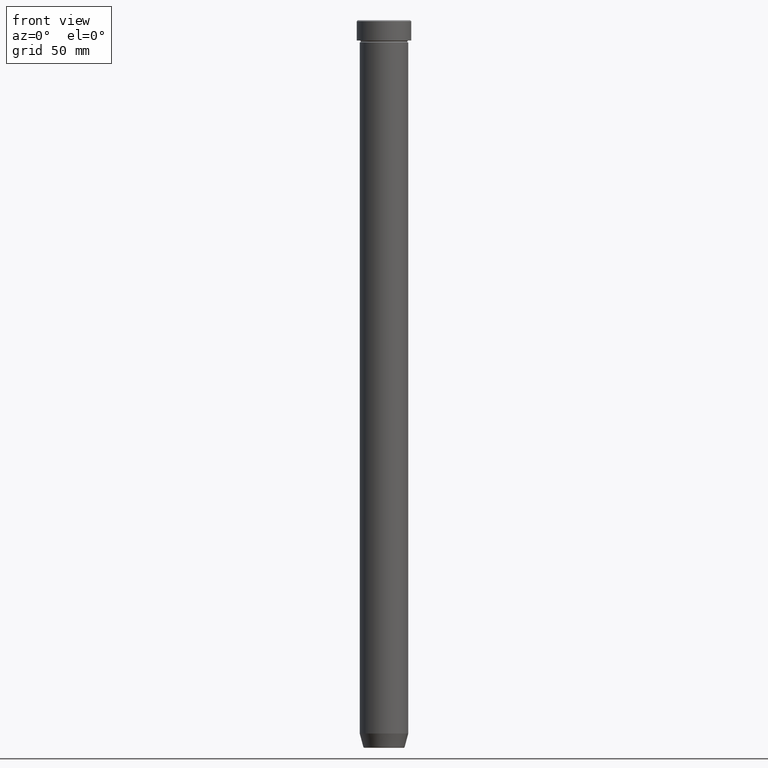
[diagram: clean part render]
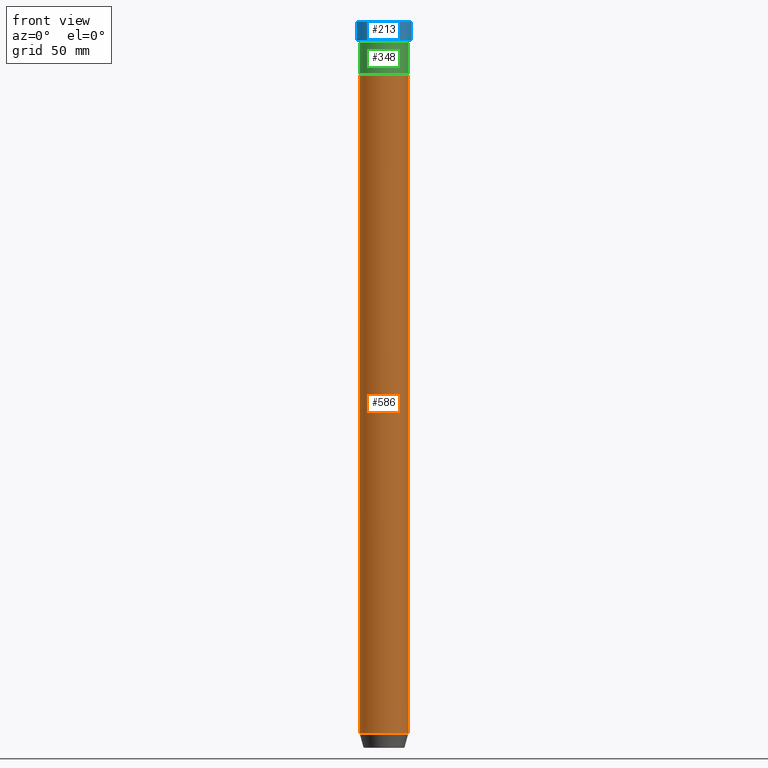
[diagram: same view with three faces highlighted in distinct colors, each labeled with its STEP entity id]
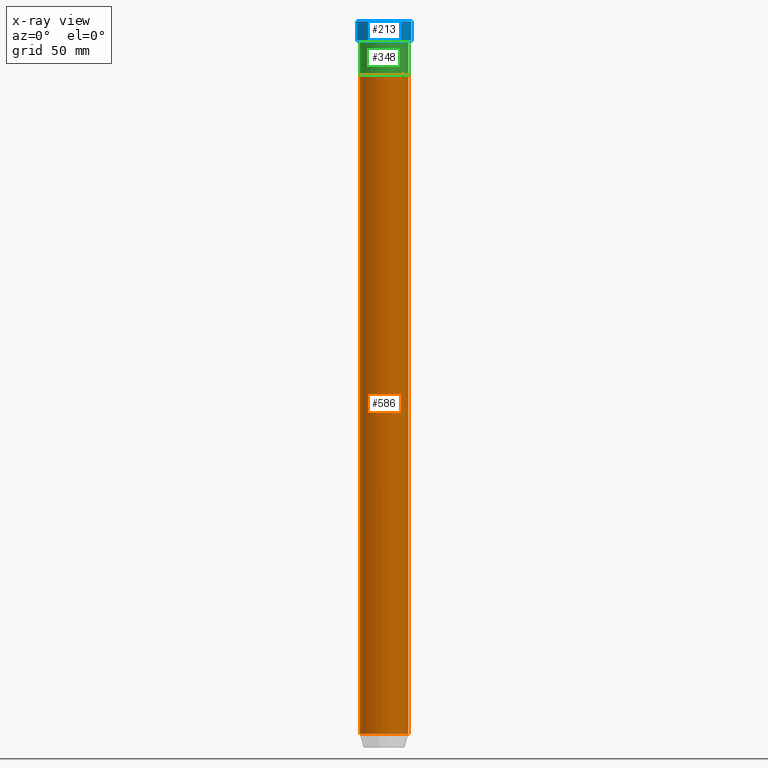
[diagram: x-ray of the same camera — body ghosted, the three highlighted faces saturated]
A machine part, front view with three faces highlighted in distinct colors.
The next image is the same camera in x-ray (body ghosted, the three faces saturated) — at least one of them is partly hidden behind the body in this view.
Their STEP definitions:

[orange] entity #586 — the highlighted cylindrical surface (edge-blend (fillet) strip) has radius 12 mm, axis along (-0, -0, 1).
#5 = DIRECTION ( 'NONE',  ( -0.000000000000000000, -0.000000000000000000, 1.000000000000000000 ) ) ;
#15 = DIRECTION ( 'NONE',  ( -0.000000000000000000, -0.000000000000000000, 1.000000000000000000 ) ) ;
#49 = VERTEX_POINT ( 'NONE', #89 ) ;
#58 = LINE ( 'NONE', #565, #477 ) ;
#67 = DIRECTION ( 'NONE',  ( 1.000000000000000000, 0.000000000000000000, 0.000000000000000000 ) ) ;
#89 = CARTESIAN_POINT ( 'NONE',  ( -12.00000000000000000, 1.469576158976823947E-15, -353.0000000000000568 ) ) ;
#96 = EDGE_CURVE ( 'NONE', #49, #287, #172, .T. ) ;
#97 = CARTESIAN_POINT ( 'NONE',  ( 0.000000000000000000, 0.000000000000000000, -353.0000000000000568 ) ) ;
#110 = VECTOR ( 'NONE', #141, 1000.000000000000000 ) ;
#116 = CARTESIAN_POINT ( 'NONE',  ( 0.000000000000000000, 0.000000000000000000, 0.000000000000000000 ) ) ;
#131 = ORIENTED_EDGE ( 'NONE', *, *, #96, .T. ) ;
#141 = DIRECTION ( 'NONE',  ( -0.000000000000000000, -0.000000000000000000, 1.000000000000000000 ) ) ;
#172 = CIRCLE ( 'NONE', #338, 12.00000000000000000 ) ;
#200 = AXIS2_PLACEMENT_3D ( 'NONE', #483, #393, #201 ) ;
#201 = DIRECTION ( 'NONE',  ( 1.000000000000000000, 0.000000000000000000, 0.000000000000000000 ) ) ;
#223 = CIRCLE ( 'NONE', #200, 12.00000000000000000 ) ;
#227 = VERTEX_POINT ( 'NONE', #504 ) ;
#261 = ORIENTED_EDGE ( 'NONE', *, *, #553, .T. ) ;
#268 = CYLINDRICAL_SURFACE ( 'NONE', #449, 12.00000000000000000 ) ;
#272 = EDGE_LOOP ( 'NONE', ( #317, #131, #261, #485 ) ) ;
#278 = FACE_OUTER_BOUND ( 'NONE', #272, .T. ) ;
#287 = VERTEX_POINT ( 'NONE', #328 ) ;
#317 = ORIENTED_EDGE ( 'NONE', *, *, #459, .F. ) ;
#328 = CARTESIAN_POINT ( 'NONE',  ( 12.00000000000000000, 0.000000000000000000, -353.0000000000000568 ) ) ;
#338 = AXIS2_PLACEMENT_3D ( 'NONE', #97, #5, #67 ) ;
#349 = CARTESIAN_POINT ( 'NONE',  ( 12.00000000000000000, 0.000000000000000000, -27.00000000000000000 ) ) ;
#393 = DIRECTION ( 'NONE',  ( -0.000000000000000000, -0.000000000000000000, 1.000000000000000000 ) ) ;
#449 = AXIS2_PLACEMENT_3D ( 'NONE', #116, #460, #575 ) ;
#459 = EDGE_CURVE ( 'NONE', #49, #227, #58, .T. ) ;
#460 = DIRECTION ( 'NONE',  ( -0.000000000000000000, -0.000000000000000000, 1.000000000000000000 ) ) ;
#474 = EDGE_CURVE ( 'NONE', #227, #489, #223, .T. ) ;
#477 = VECTOR ( 'NONE', #15, 1000.000000000000000 ) ;
#483 = CARTESIAN_POINT ( 'NONE',  ( 0.000000000000000000, 0.000000000000000000, -27.00000000000000000 ) ) ;
#485 = ORIENTED_EDGE ( 'NONE', *, *, #474, .F. ) ;
#489 = VERTEX_POINT ( 'NONE', #349 ) ;
#504 = CARTESIAN_POINT ( 'NONE',  ( -12.00000000000000000, 1.469576158976823947E-15, -27.00000000000000000 ) ) ;
#532 = CARTESIAN_POINT ( 'NONE',  ( 12.00000000000000000, 0.000000000000000000, 0.000000000000000000 ) ) ;
#553 = EDGE_CURVE ( 'NONE', #287, #489, #562, .T. ) ;
#562 = LINE ( 'NONE', #532, #110 ) ;
#565 = CARTESIAN_POINT ( 'NONE',  ( -12.00000000000000000, 1.469576158976823947E-15, 0.000000000000000000 ) ) ;
#575 = DIRECTION ( 'NONE',  ( 1.000000000000000000, 0.000000000000000000, 0.000000000000000000 ) ) ;
#586 = ADVANCED_FACE ( 'NONE', ( #278 ), #268, .T. ) ;

[blue] entity #213 — the highlighted cylindrical surface (edge-blend (fillet) strip) has radius 13.5 mm, axis along (-0, -0, 1).
#4 = VERTEX_POINT ( 'NONE', #591 ) ;
#9 = AXIS2_PLACEMENT_3D ( 'NONE', #372, #321, #284 ) ;
#17 = CARTESIAN_POINT ( 'NONE',  ( 0.000000000000000000, 0.000000000000000000, 0.000000000000000000 ) ) ;
#21 = VERTEX_POINT ( 'NONE', #454 ) ;
#52 = EDGE_CURVE ( 'NONE', #176, #21, #280, .T. ) ;
#118 = VECTOR ( 'NONE', #374, 1000.000000000000000 ) ;
#170 = ORIENTED_EDGE ( 'NONE', *, *, #253, .T. ) ;
#176 = VERTEX_POINT ( 'NONE', #358 ) ;
#185 = EDGE_CURVE ( 'NONE', #4, #176, #496, .T. ) ;
#203 = CYLINDRICAL_SURFACE ( 'NONE', #304, 13.50000000000000000 ) ;
#209 = DIRECTION ( 'NONE',  ( -0.000000000000000000, -0.000000000000000000, 1.000000000000000000 ) ) ;
#213 = ADVANCED_FACE ( 'NONE', ( #487 ), #203, .T. ) ;
#242 = CARTESIAN_POINT ( 'NONE',  ( -13.50000000000000000, 1.653273178848926867E-15, -10.00000000000000000 ) ) ;
#253 = EDGE_CURVE ( 'NONE', #274, #4, #469, .T. ) ;
#274 = VERTEX_POINT ( 'NONE', #242 ) ;
#280 = CIRCLE ( 'NONE', #9, 13.50000000000000000 ) ;
#284 = DIRECTION ( 'NONE',  ( 1.000000000000000000, 0.000000000000000000, 0.000000000000000000 ) ) ;
#303 = ORIENTED_EDGE ( 'NONE', *, *, #52, .T. ) ;
#304 = AXIS2_PLACEMENT_3D ( 'NONE', #17, #377, #309 ) ;
#305 = DIRECTION ( 'NONE',  ( 1.000000000000000000, 0.000000000000000000, 0.000000000000000000 ) ) ;
#306 = VECTOR ( 'NONE', #482, 1000.000000000000000 ) ;
#309 = DIRECTION ( 'NONE',  ( 1.000000000000000000, 0.000000000000000000, 0.000000000000000000 ) ) ;
#321 = DIRECTION ( 'NONE',  ( 0.000000000000000000, 0.000000000000000000, -1.000000000000000000 ) ) ;
#327 = ORIENTED_EDGE ( 'NONE', *, *, #185, .T. ) ;
#345 = CARTESIAN_POINT ( 'NONE',  ( -13.50000000000000000, 1.653273178848926867E-15, 0.000000000000000000 ) ) ;
#353 = CARTESIAN_POINT ( 'NONE',  ( 0.000000000000000000, 0.000000000000000000, -10.00000000000000000 ) ) ;
#358 = CARTESIAN_POINT ( 'NONE',  ( 13.50000000000000000, 0.000000000000000000, -0.5000000000000091038 ) ) ;
#372 = CARTESIAN_POINT ( 'NONE',  ( 0.000000000000000000, 0.000000000000000000, -0.5000000000000091038 ) ) ;
#374 = DIRECTION ( 'NONE',  ( -0.000000000000000000, -0.000000000000000000, 1.000000000000000000 ) ) ;
#377 = DIRECTION ( 'NONE',  ( -0.000000000000000000, -0.000000000000000000, 1.000000000000000000 ) ) ;
#454 = CARTESIAN_POINT ( 'NONE',  ( -13.50000000000000000, 1.653273178848926867E-15, -0.5000000000000091038 ) ) ;
#469 = CIRCLE ( 'NONE', #515, 13.50000000000000000 ) ;
#482 = DIRECTION ( 'NONE',  ( -0.000000000000000000, -0.000000000000000000, 1.000000000000000000 ) ) ;
#487 = FACE_OUTER_BOUND ( 'NONE', #542, .T. ) ;
#496 = LINE ( 'NONE', #544, #118 ) ;
#500 = ORIENTED_EDGE ( 'NONE', *, *, #520, .F. ) ;
#515 = AXIS2_PLACEMENT_3D ( 'NONE', #353, #209, #305 ) ;
#520 = EDGE_CURVE ( 'NONE', #274, #21, #526, .T. ) ;
#526 = LINE ( 'NONE', #345, #306 ) ;
#542 = EDGE_LOOP ( 'NONE', ( #500, #170, #327, #303 ) ) ;
#544 = CARTESIAN_POINT ( 'NONE',  ( 13.50000000000000000, 0.000000000000000000, 0.000000000000000000 ) ) ;
#591 = CARTESIAN_POINT ( 'NONE',  ( 13.50000000000000000, 0.000000000000000000, -10.00000000000000000 ) ) ;

[green] entity #348 — the highlighted cylindrical surface (edge-blend (fillet) strip) has radius 12 mm, axis along (-0, -0, 1).
#18 = EDGE_LOOP ( 'NONE', ( #120, #365, #574, #249 ) ) ;
#43 = CARTESIAN_POINT ( 'NONE',  ( 0.000000000000000000, 0.000000000000000000, -11.00000000000000000 ) ) ;
#59 = CARTESIAN_POINT ( 'NONE',  ( 12.00000000000000000, 0.000000000000000000, 0.000000000000000000 ) ) ;
#70 = VERTEX_POINT ( 'NONE', #240 ) ;
#111 = CARTESIAN_POINT ( 'NONE',  ( -12.00000000000000000, 1.469576158976823947E-15, -11.00000000000000000 ) ) ;
#120 = ORIENTED_EDGE ( 'NONE', *, *, #536, .F. ) ;
#123 = CARTESIAN_POINT ( 'NONE',  ( 12.00000000000000000, 0.000000000000000000, -27.00000000000000000 ) ) ;
#135 = VERTEX_POINT ( 'NONE', #587 ) ;
#146 = VECTOR ( 'NONE', #567, 1000.000000000000000 ) ;
#183 = DIRECTION ( 'NONE',  ( 1.000000000000000000, 0.000000000000000000, 0.000000000000000000 ) ) ;
#187 = VERTEX_POINT ( 'NONE', #111 ) ;
#193 = EDGE_CURVE ( 'NONE', #135, #215, #335, .T. ) ;
#197 = CARTESIAN_POINT ( 'NONE',  ( -12.00000000000000000, 1.469576158976823947E-15, 0.000000000000000000 ) ) ;
#205 = DIRECTION ( 'NONE',  ( -0.000000000000000000, -0.000000000000000000, 1.000000000000000000 ) ) ;
#215 = VERTEX_POINT ( 'NONE', #123 ) ;
#240 = CARTESIAN_POINT ( 'NONE',  ( 12.00000000000000000, 0.000000000000000000, -11.00000000000000000 ) ) ;
#249 = ORIENTED_EDGE ( 'NONE', *, *, #356, .F. ) ;
#254 = AXIS2_PLACEMENT_3D ( 'NONE', #43, #519, #559 ) ;
#279 = DIRECTION ( 'NONE',  ( -0.000000000000000000, -0.000000000000000000, 1.000000000000000000 ) ) ;
#295 = AXIS2_PLACEMENT_3D ( 'NONE', #439, #279, #398 ) ;
#335 = CIRCLE ( 'NONE', #295, 12.00000000000000000 ) ;
#348 = ADVANCED_FACE ( 'NONE', ( #472 ), #388, .T. ) ;
#356 = EDGE_CURVE ( 'NONE', #187, #70, #505, .T. ) ;
#359 = VECTOR ( 'NONE', #205, 1000.000000000000000 ) ;
#365 = ORIENTED_EDGE ( 'NONE', *, *, #193, .T. ) ;
#388 = CYLINDRICAL_SURFACE ( 'NONE', #475, 12.00000000000000000 ) ;
#398 = DIRECTION ( 'NONE',  ( 1.000000000000000000, 0.000000000000000000, 0.000000000000000000 ) ) ;
#439 = CARTESIAN_POINT ( 'NONE',  ( 0.000000000000000000, 0.000000000000000000, -27.00000000000000000 ) ) ;
#468 = DIRECTION ( 'NONE',  ( -0.000000000000000000, -0.000000000000000000, 1.000000000000000000 ) ) ;
#471 = EDGE_CURVE ( 'NONE', #215, #70, #523, .T. ) ;
#472 = FACE_OUTER_BOUND ( 'NONE', #18, .T. ) ;
#475 = AXIS2_PLACEMENT_3D ( 'NONE', #555, #468, #183 ) ;
#505 = CIRCLE ( 'NONE', #254, 12.00000000000000000 ) ;
#519 = DIRECTION ( 'NONE',  ( -0.000000000000000000, -0.000000000000000000, 1.000000000000000000 ) ) ;
#523 = LINE ( 'NONE', #59, #146 ) ;
#527 = LINE ( 'NONE', #197, #359 ) ;
#536 = EDGE_CURVE ( 'NONE', #135, #187, #527, .T. ) ;
#555 = CARTESIAN_POINT ( 'NONE',  ( 0.000000000000000000, 0.000000000000000000, 0.000000000000000000 ) ) ;
#559 = DIRECTION ( 'NONE',  ( 1.000000000000000000, 0.000000000000000000, 0.000000000000000000 ) ) ;
#567 = DIRECTION ( 'NONE',  ( -0.000000000000000000, -0.000000000000000000, 1.000000000000000000 ) ) ;
#574 = ORIENTED_EDGE ( 'NONE', *, *, #471, .T. ) ;
#587 = CARTESIAN_POINT ( 'NONE',  ( -12.00000000000000000, 1.469576158976823947E-15, -27.00000000000000000 ) ) ;